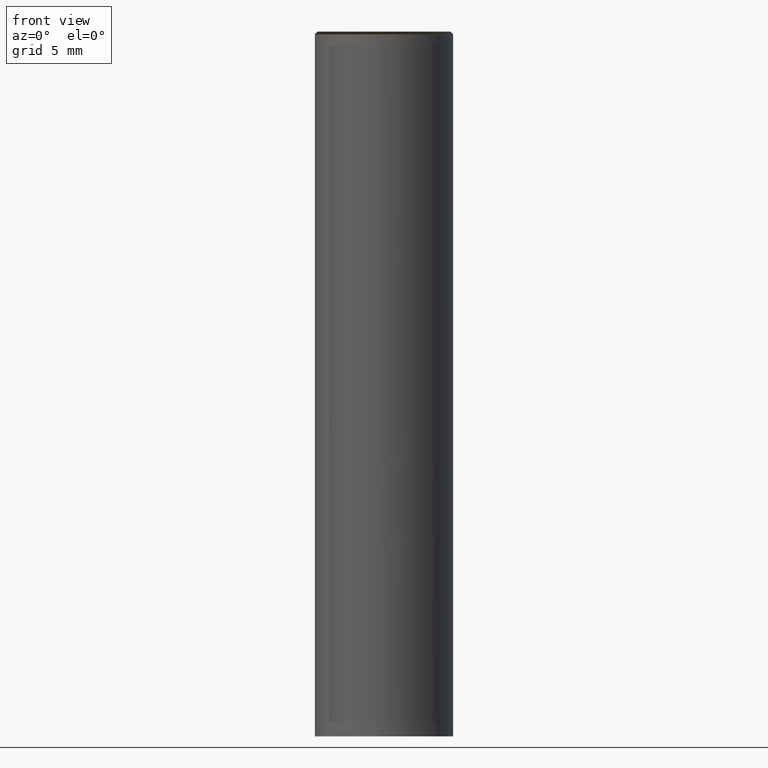
[diagram: clean part render]
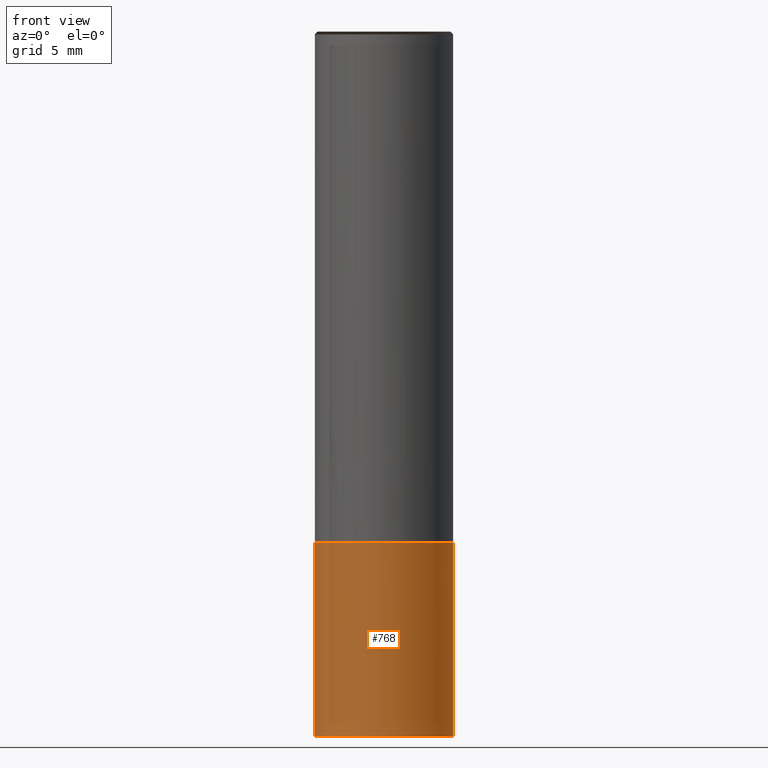
[diagram: same view with one face highlighted and labeled with its STEP entity id]
A machine part, front view. The second image highlights one B-rep face of the part: STEP entity #768.
In plain terms, the highlighted face is a freeform B-spline surface patch.
Its self-contained STEP definition (entity closure, byte-faithful):
#109=CARTESIAN_POINT('',(0.0,-5.0,-20.0));
#634=CARTESIAN_POINT('',(5.0,0.0,-20.0));
#638=CARTESIAN_POINT('',(-5.0,0.0,-20.0));
#639=CARTESIAN_POINT('',(5.0,0.0,-6.0));
#643=CARTESIAN_POINT('',(-5.0,0.0,-6.0));
#645=CARTESIAN_POINT('',(-5.0,-5.0,-20.0));
#646=CARTESIAN_POINT('',(5.0,-5.0,-20.0));
#647=CARTESIAN_POINT('',(-5.0,-5.0,-6.0));
#648=CARTESIAN_POINT('',(0.0,-5.0,-6.0));
#649=CARTESIAN_POINT('',(5.0,-5.0,-6.0));
#749=(
BOUNDED_SURFACE()
B_SPLINE_SURFACE(1,2,(
(#638,#645,#109,#646,#634),
(#643,#647,#648,#649,#639)
), .UNSPECIFIED.,.F.,.F.,.F.)
B_SPLINE_SURFACE_WITH_KNOTS((2,2),(3,2,3),(
0.0,1.0),(
0.0,0.5,1.0), .UNSPECIFIED.)
GEOMETRIC_REPRESENTATION_ITEM()
RATIONAL_B_SPLINE_SURFACE(((1.0,0.707106781187,1.0,0.707106781187,1.0),
(1.0,0.707106781187,1.0,0.707106781187,1.0)
))
REPRESENTATION_ITEM('')
SURFACE()
);
#750=(
BOUNDED_CURVE()
B_SPLINE_CURVE(2,(#634,#646,#109,#645,#638),.UNSPECIFIED.,.F.,.F.)
B_SPLINE_CURVE_WITH_KNOTS((3,2,3),
(0.0,0.5,1.0),.UNSPECIFIED.)
CURVE()
GEOMETRIC_REPRESENTATION_ITEM()
RATIONAL_B_SPLINE_CURVE((1.0,0.707106781187,1.0,0.707106781187,1.0))
REPRESENTATION_ITEM('')
);
#751=(
BOUNDED_CURVE()
B_SPLINE_CURVE(1,(#638,#643),.UNSPECIFIED.,.F.,.F.)
B_SPLINE_CURVE_WITH_KNOTS((2,2),
(0.0,1.0),.UNSPECIFIED.)
CURVE()
GEOMETRIC_REPRESENTATION_ITEM()
RATIONAL_B_SPLINE_CURVE((1.0,1.0))
REPRESENTATION_ITEM('')
);
#752=(
BOUNDED_CURVE()
B_SPLINE_CURVE(2,(#643,#647,#648,#649,#639),.UNSPECIFIED.,.F.,.F.)
B_SPLINE_CURVE_WITH_KNOTS((3,2,3),
(0.0,0.5,1.0),.UNSPECIFIED.)
CURVE()
GEOMETRIC_REPRESENTATION_ITEM()
RATIONAL_B_SPLINE_CURVE((1.0,0.707106781187,1.0,0.707106781187,1.0))
REPRESENTATION_ITEM('')
);
#753=(
BOUNDED_CURVE()
B_SPLINE_CURVE(1,(#639,#634),.UNSPECIFIED.,.F.,.F.)
B_SPLINE_CURVE_WITH_KNOTS((2,2),
(0.0,1.0),.UNSPECIFIED.)
CURVE()
GEOMETRIC_REPRESENTATION_ITEM()
RATIONAL_B_SPLINE_CURVE((1.0,1.0))
REPRESENTATION_ITEM('')
);
#754=VERTEX_POINT('',#634);
#755=VERTEX_POINT('',#638);
#756=VERTEX_POINT('',#639);
#757=VERTEX_POINT('',#643);
#758=EDGE_CURVE('',#754,#755,#750,.T.);
#759=EDGE_CURVE('',#755,#757,#751,.T.);
#760=EDGE_CURVE('',#757,#756,#752,.T.);
#761=EDGE_CURVE('',#756,#754,#753,.T.);
#762=ORIENTED_EDGE('',*,*,#758,.T.);
#763=ORIENTED_EDGE('',*,*,#759,.T.);
#764=ORIENTED_EDGE('',*,*,#760,.T.);
#765=ORIENTED_EDGE('',*,*,#761,.T.);
#766=EDGE_LOOP('',(#762,#763,#764,#765));
#767=FACE_OUTER_BOUND('',#766,.T.);
#768=ADVANCED_FACE('',(#767),#749,.T.);